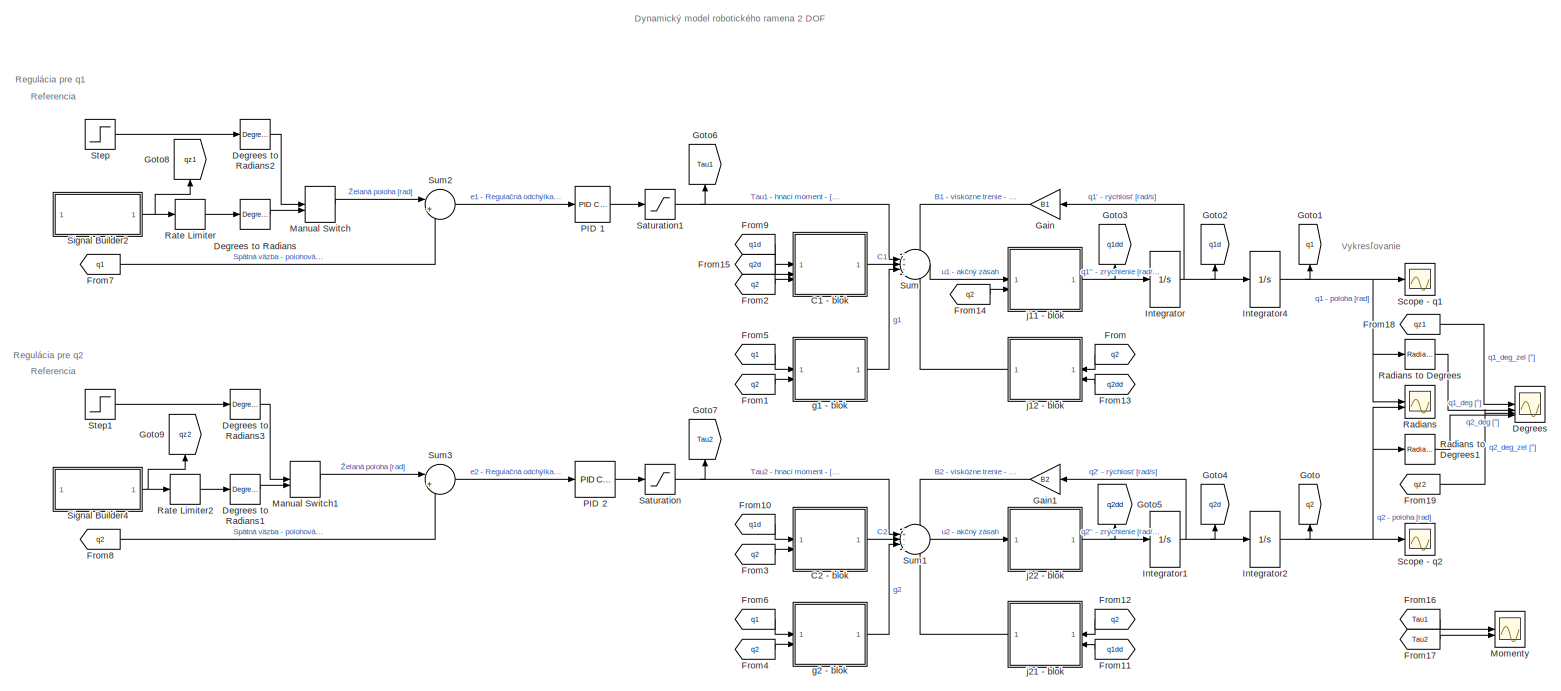
[diagram: root canvas - part 1/1, most of the canvas]
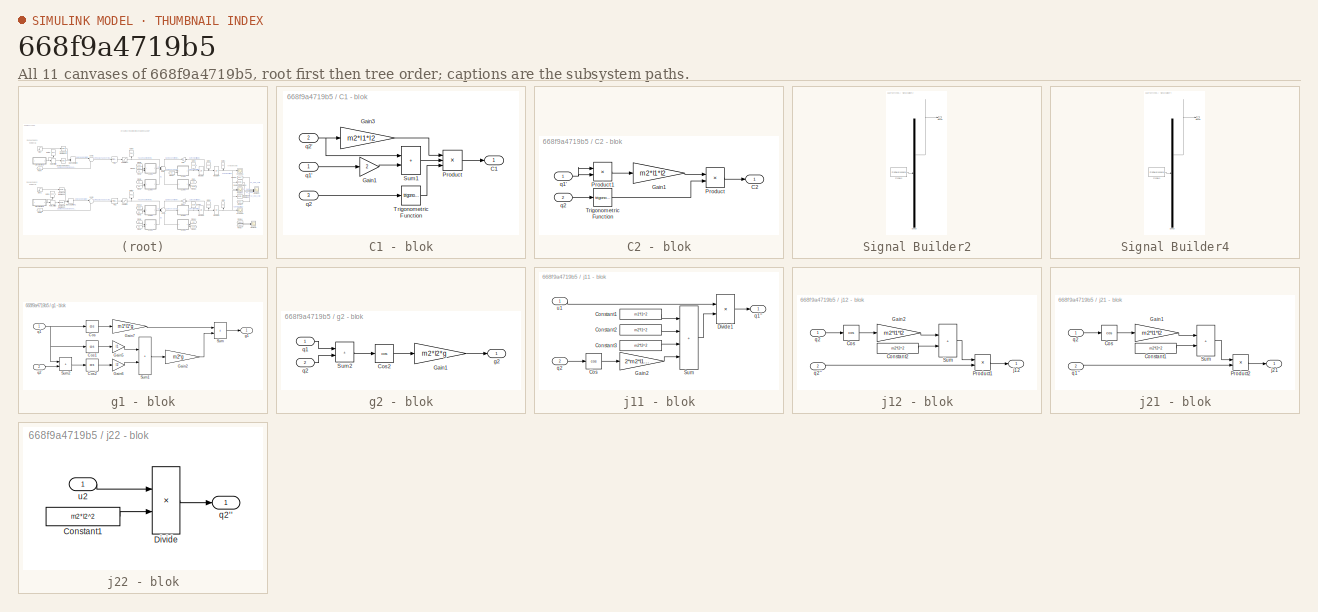
[diagram: thumbnail index - all 11 canvases of the model, root first then tree order]
MODEL slx_668f9a4719b5
KIND model
CONFIG AbsTol = auto
CONFIG EnableMultiTasking = off
CONFIG FixedStep = auto
CONFIG MaxStep = auto
CONFIG MinStep = auto
CONFIG RelTol = 1e-3
CONFIG SampleTimeConstraint = Unconstrained
CONFIG SolverName = VariableStepAuto
CONFIG StartTime = 0.0
CONFIG StopTime = 100
BLOCK [SubSystem] C1 - blok
BLOCK [Outport] C1 - blok/C1
BLOCK [Gain] C1 - blok/Gain1
  Gain = 2
BLOCK [Gain] C1 - blok/Gain3
  Gain = m2*l1*l2
BLOCK [Product] C1 - blok/Product
  Inputs = 3
BLOCK [Sum] C1 - blok/Sum1
  IconShape = rectangular
BLOCK [Trigonometry] C1 - blok/Trigonometric Function
BLOCK [Inport] C1 - blok/q1'
BLOCK [Inport] C1 - blok/q2
  Port = 3
BLOCK [Inport] C1 - blok/q2'
  Port = 2
BLOCK [SubSystem] C2 - blok
BLOCK [Outport] C2 - blok/C2
BLOCK [Gain] C2 - blok/Gain1
  Gain = m2*l1*l2
BLOCK [Product] C2 - blok/Product
BLOCK [Product] C2 - blok/Product1
BLOCK [Trigonometry] C2 - blok/Trigonometric Function
BLOCK [Inport] C2 - blok/q1'
BLOCK [Inport] C2 - blok/q2
  Port = 2
BLOCK [Scope] Degrees
  Floating = off
  NumInputPorts = 4
  ScopeSpecificationString = Simulink.scopes.TimeScopeBlockCfg('CurrentConfiguration', extmgr.ConfigurationSet(extmgr.Configuration('Core','General UI',true),extmgr.Configuration('Core','Source UI',true),extmgr.Configuration('Sources','WiredSimulink',true,'DataLoggingVariableName','OverenieModeluRegulacie','DataLogging',true,'DataLoggingSaveFormat','StructureWithTime'),extmgr.Configuration('Visuals','Time Domain',true,'Serial...<+1675ch>
BLOCK [Reference] Degrees to Radians  REF=simulink_extras/Transformations/Degrees to
Radians
  SourceBlock = simulink_extras/Transformations/Degrees to\nRadians
  SourceType = DegreesToRadians
BLOCK [Reference] Degrees to Radians1  REF=simulink_extras/Transformations/Degrees to
Radians
  SourceBlock = simulink_extras/Transformations/Degrees to\nRadians
  SourceType = DegreesToRadians
BLOCK [Reference] Degrees to Radians2  REF=simulink_extras/Transformations/Degrees to
Radians
  SourceBlock = simulink_extras/Transformations/Degrees to\nRadians
  SourceType = DegreesToRadians
BLOCK [Reference] Degrees to Radians3  REF=simulink_extras/Transformations/Degrees to
Radians
  SourceBlock = simulink_extras/Transformations/Degrees to\nRadians
  SourceType = DegreesToRadians
BLOCK [From] From
  GotoTag = q2
BLOCK [From] From1
  GotoTag = q2
BLOCK [From] From10
  GotoTag = q1d
BLOCK [From] From11
  GotoTag = q1dd
BLOCK [From] From12
  GotoTag = q2
BLOCK [From] From13
  GotoTag = q2dd
BLOCK [From] From14
  GotoTag = q2
BLOCK [From] From15
  GotoTag = q2d
BLOCK [From] From16
  GotoTag = Tau1
BLOCK [From] From17
  GotoTag = Tau2
BLOCK [From] From18
  GotoTag = qz1
BLOCK [From] From19
  GotoTag = qz2
BLOCK [From] From2
  GotoTag = q2
BLOCK [From] From3
  GotoTag = q2
BLOCK [From] From4
  GotoTag = q2
BLOCK [From] From5
  GotoTag = q1
BLOCK [From] From6
  GotoTag = q1
BLOCK [From] From7
  GotoTag = q1
BLOCK [From] From8
  GotoTag = q2
BLOCK [From] From9
  GotoTag = q1d
BLOCK [Gain] Gain
  Gain = B1
BLOCK [Gain] Gain1
  Gain = B2
BLOCK [Goto] Goto
  GotoTag = q2
  NameLocation = right
BLOCK [Goto] Goto1
  GotoTag = q1
  NameLocation = right
BLOCK [Goto] Goto2
  GotoTag = q1d
  NameLocation = right
BLOCK [Goto] Goto3
  GotoTag = q1dd
  NameLocation = right
BLOCK [Goto] Goto4
  GotoTag = q2d
  NameLocation = right
BLOCK [Goto] Goto5
  GotoTag = q2dd
  NameLocation = right
BLOCK [Goto] Goto6
  GotoTag = Tau1
  NameLocation = right
BLOCK [Goto] Goto7
  GotoTag = Tau2
  NameLocation = right
BLOCK [Goto] Goto8
  GotoTag = qz1
  NameLocation = right
BLOCK [Goto] Goto9
  GotoTag = qz2
  NameLocation = right
BLOCK [Integrator] Integrator
BLOCK [Integrator] Integrator1
BLOCK [Integrator] Integrator2
BLOCK [Integrator] Integrator4
BLOCK [ManualSwitch] Manual Switch
  CurrentSetting = 0
BLOCK [ManualSwitch] Manual Switch1
  CurrentSetting = 0
BLOCK [Scope] Momenty
  Floating = off
  NumInputPorts = 2
  ScopeSpecificationString = Simulink.scopes.TimeScopeBlockCfg('CurrentConfiguration', extmgr.ConfigurationSet(extmgr.Configuration('Core','General UI',true),extmgr.Configuration('Core','Source UI',true),extmgr.Configuration('Sources','WiredSimulink',true,'DataLoggingVariableName','momentyRiadenieBezobmedzenia','DataLogging',true,'DataLoggingSaveFormat','StructureWithTime'),extmgr.Configuration('Visuals','Time Domain',true,'S...<+1675ch>
BLOCK [Reference] PID 1  REF=slpidlib/PID Controller
  LibrarySourceBlock = simulink/Continuous/PID Controller
  SourceBlock = slpidlib/PID Controller
  SourceType = PID 1dof
BLOCK [Reference] PID 2  REF=slpidlib/PID Controller
  LibrarySourceBlock = simulink/Continuous/PID Controller
  SourceBlock = slpidlib/PID Controller
  SourceType = PID 1dof
BLOCK [Scope] Radians
  Floating = off
  NumInputPorts = 2
  ScopeSpecificationString = Simulink.scopes.TimeScopeBlockCfg('CurrentConfiguration', extmgr.ConfigurationSet(extmgr.Configuration('Core','General UI',true),extmgr.Configuration('Core','Source UI',true),extmgr.Configuration('Sources','WiredSimulink',true,'DataLoggingVariableName','ScopeData1'),extmgr.Configuration('Visuals','Time Domain',true,'SerializedDisplays',{struct('MinYLimReal','-3.36027','MaxYLimReal','1.08157','YLab...<+1394ch>
BLOCK [Reference] Radians to Degrees  REF=simulink_extras/Transformations/Radians
to Degrees
  SourceBlock = simulink_extras/Transformations/Radians\nto Degrees
  SourceType = RadiansToDegrees
BLOCK [Reference] Radians to Degrees1  REF=simulink_extras/Transformations/Radians
to Degrees
  SourceBlock = simulink_extras/Transformations/Radians\nto Degrees
  SourceType = RadiansToDegrees
BLOCK [RateLimiter] Rate Limiter
  FallingSlewLimit = -max_speedChange1
  RisingSlewLimit = max_speedChange1
BLOCK [RateLimiter] Rate Limiter2
  FallingSlewLimit = -max_speedChange2
  RisingSlewLimit = max_speedChange2
BLOCK [Saturate] Saturation
  LowerLimit = -max_tourque2
  UpperLimit = max_tourque2
BLOCK [Saturate] Saturation1
  LowerLimit = -max_tourque1
  UpperLimit = max_tourque1
BLOCK [Scope] Scope - q1
  Floating = off
  NumInputPorts = 1
  ScopeSpecificationString = Simulink.scopes.TimeScopeBlockCfg('CurrentConfiguration', extmgr.ConfigurationSet(extmgr.Configuration('Core','General UI',true),extmgr.Configuration('Core','Source UI',true),extmgr.Configuration('Sources','WiredSimulink',true),extmgr.Configuration('Visuals','Time Domain',true,'SerializedDisplays',{struct('MinYLimReal','-3.28059','MaxYLimReal','0.36451','YLabelReal','','MinYLimMag','0.00000','MaxY...<+1322ch>
BLOCK [Scope] Scope - q2
  Floating = off
  NumInputPorts = 1
  ScopeSpecificationString = Simulink.scopes.TimeScopeBlockCfg('CurrentConfiguration', extmgr.ConfigurationSet(extmgr.Configuration('Core','General UI',true),extmgr.Configuration('Core','Source UI',true),extmgr.Configuration('Sources','WiredSimulink',true,'DataLoggingVariableName','ScopeData1'),extmgr.Configuration('Visuals','Time Domain',true),extmgr.Configuration('Tools','Plot Navigation',true),extmgr.Configuration('Tools',...<+40ch>
BLOCK [SubSystem] Signal Builder2
  ClipboardFcn = sigbuilder_block('clipboard');
  CloseFcn = sigbuilder_block('close');
  ContinueFcn = sigbuilder_block('continue');
  CopyFcn = sigbuilder_block('copy');
  DeleteFcn = sigbuilder_block('delete');
  LoadFcn = sigbuilder_block('load');
  MaskHideContents = on
  ModelCloseFcn = sigbuilder_block('modelClose');
  NameChangeFcn = sigbuilder_block('namechange');
  OpenFcn = sigbuilder_block('open',[-1213.8 -85.8 1141.2 552.6 ]);
  PauseFcn = sigbuilder_block('pause');
  PreSaveFcn = sigbuilder_block('preSave');
  StartFcn = sigbuilder_block('start');
  StopFcn = sigbuilder_block('stop');
  Tag = STV Subsys
BLOCK [Demux] Signal Builder2/Demux
  DisplayOption = none
  Outputs = 1
  Tag = STV Demux
BLOCK [FromWorkspace] Signal Builder2/FromWs
  Tag = STV FromWs
  VariableName = tuvar
BLOCK [Outport] Signal Builder2/Signal 1
  Tag = STV Outport
BLOCK [SubSystem] Signal Builder4
  ClipboardFcn = sigbuilder_block('clipboard');
  CloseFcn = sigbuilder_block('close');
  ContinueFcn = sigbuilder_block('continue');
  CopyFcn = sigbuilder_block('copy');
  DeleteFcn = sigbuilder_block('delete');
  LoadFcn = sigbuilder_block('load');
  MaskHideContents = on
  ModelCloseFcn = sigbuilder_block('modelClose');
  NameChangeFcn = sigbuilder_block('namechange');
  OpenFcn = sigbuilder_block('open',[-1343.4 -48 1141.2 552.6 ]);
  PauseFcn = sigbuilder_block('pause');
  PreSaveFcn = sigbuilder_block('preSave');
  StartFcn = sigbuilder_block('start');
  StopFcn = sigbuilder_block('stop');
  Tag = STV Subsys
BLOCK [Demux] Signal Builder4/Demux
  DisplayOption = none
  Outputs = 1
  Tag = STV Demux
BLOCK [FromWorkspace] Signal Builder4/FromWs
  Tag = STV FromWs
  VariableName = tuvar
BLOCK [Outport] Signal Builder4/Signal 1
  Tag = STV Outport
BLOCK [Step] Step
  After = 0
  SampleTime = 0
  Time = 0
BLOCK [Step] Step1
  After = 0
  SampleTime = 0
  Time = 0
BLOCK [Sum] Sum
  Inputs = -++--
BLOCK [Sum] Sum1
  Inputs = -+---
BLOCK [Sum] Sum2
  Inputs = |+-
BLOCK [Sum] Sum3
  Inputs = |+-
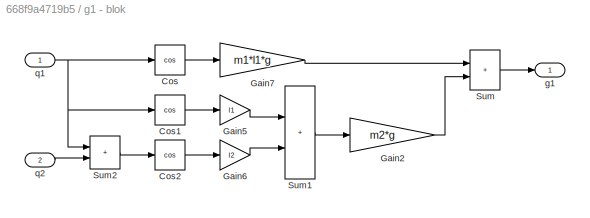
BLOCK [SubSystem] g1 - blok
BLOCK [Trigonometry] g1 - blok/Cos
  Operator = cos
BLOCK [Trigonometry] g1 - blok/Cos1
  Operator = cos
BLOCK [Trigonometry] g1 - blok/Cos2
  Operator = cos
BLOCK [Gain] g1 - blok/Gain2
  Gain = m2*g
BLOCK [Gain] g1 - blok/Gain5
  Gain = l1
BLOCK [Gain] g1 - blok/Gain6
  Gain = l2
BLOCK [Gain] g1 - blok/Gain7
  Gain = m1*l1*g
BLOCK [Sum] g1 - blok/Sum
  IconShape = rectangular
BLOCK [Sum] g1 - blok/Sum1
  IconShape = rectangular
BLOCK [Sum] g1 - blok/Sum2
  IconShape = rectangular
BLOCK [Outport] g1 - blok/g1
BLOCK [Inport] g1 - blok/q1
BLOCK [Inport] g1 - blok/q2
  Port = 2
BLOCK [SubSystem] g2 - blok
BLOCK [Trigonometry] g2 - blok/Cos2
  Operator = cos
BLOCK [Gain] g2 - blok/Gain1
  Gain = m2*l2*g
BLOCK [Sum] g2 - blok/Sum2
  IconShape = rectangular
BLOCK [Outport] g2 - blok/g2
BLOCK [Inport] g2 - blok/q1
BLOCK [Inport] g2 - blok/q2
  Port = 2
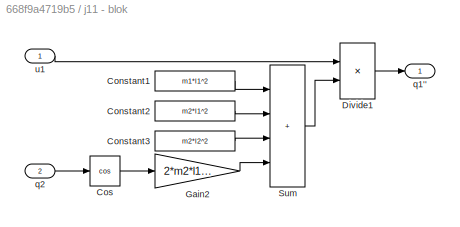
BLOCK [SubSystem] j11 - blok
BLOCK [Constant] j11 - blok/Constant1
  Value = m1*l1^2
BLOCK [Constant] j11 - blok/Constant2
  Value = m2*l1^2
BLOCK [Constant] j11 - blok/Constant3
  Value = m2*l2^2
BLOCK [Trigonometry] j11 - blok/Cos
  Operator = cos
BLOCK [Product] j11 - blok/Divide1
  Inputs = */
BLOCK [Gain] j11 - blok/Gain2
  Gain = 2*m2*l1*l2
BLOCK [Sum] j11 - blok/Sum
  IconShape = rectangular
  Inputs = ++++
BLOCK [Outport] j11 - blok/q1''
BLOCK [Inport] j11 - blok/q2
  Port = 2
BLOCK [Inport] j11 - blok/u1
BLOCK [SubSystem] j12 - blok
BLOCK [Constant] j12 - blok/Constant2
  Value = m2*l2^2
BLOCK [Trigonometry] j12 - blok/Cos
  Operator = cos
BLOCK [Gain] j12 - blok/Gain2
  Gain = m2*l1*l2
BLOCK [Product] j12 - blok/Product1
BLOCK [Sum] j12 - blok/Sum
  IconShape = rectangular
BLOCK [Outport] j12 - blok/j12
BLOCK [Inport] j12 - blok/q2
BLOCK [Inport] j12 - blok/q2''
  Port = 2
BLOCK [SubSystem] j21 - blok
BLOCK [Constant] j21 - blok/Constant1
  Value = m2*l2^2
BLOCK [Trigonometry] j21 - blok/Cos
  Operator = cos
BLOCK [Gain] j21 - blok/Gain1
  Gain = m2*l1*l2
BLOCK [Product] j21 - blok/Product2
BLOCK [Sum] j21 - blok/Sum
  IconShape = rectangular
BLOCK [Outport] j21 - blok/j21
BLOCK [Inport] j21 - blok/q1''
  Port = 2
BLOCK [Inport] j21 - blok/q2
BLOCK [SubSystem] j22 - blok
BLOCK [Constant] j22 - blok/Constant1
  Value = m2*l2^2
BLOCK [Product] j22 - blok/Divide
  Inputs = */
BLOCK [Outport] j22 - blok/q2''
BLOCK [Inport] j22 - blok/u2
ANNOTATION (root): Dynamický model robotického ramena 2 DOF
ANNOTATION (root): Referencia
ANNOTATION (root): Regulácia pre q1
ANNOTATION (root): Regulácia pre q2
ANNOTATION (root): Vykresľovanie
LINE C1 - blok/Gain1:1 -> C1 - blok/Sum1:2
LINE C1 - blok/Gain3:1 -> C1 - blok/Product:1
LINE C1 - blok/Product:1 -> C1 - blok/C1:1
LINE C1 - blok/Sum1:1 -> C1 - blok/Product:2
LINE C1 - blok/Trigonometric Function:1 -> C1 - blok/Product:3
LINE C1 - blok/q1':1 -> C1 - blok/Gain1:1
NET C1 - blok/q2':1 -> C1 - blok/Gain3:1, C1 - blok/Sum1:1
LINE C1 - blok/q2:1 -> C1 - blok/Trigonometric Function:1
LINE C1 - blok:1 -> Sum:3
LINE C2 - blok/Gain1:1 -> C2 - blok/Product:1
LINE C2 - blok/Product1:1 -> C2 - blok/Gain1:1
LINE C2 - blok/Product:1 -> C2 - blok/C2:1
LINE C2 - blok/Trigonometric Function:1 -> C2 - blok/Product:2
NET C2 - blok/q1':1 -> C2 - blok/Product1:1, C2 - blok/Product1:2
LINE C2 - blok/q2:1 -> C2 - blok/Trigonometric Function:1
LINE C2 - blok:1 -> Sum1:3
LINE Degrees to Radians1:1 -> Manual Switch1:2
LINE Degrees to Radians2:1 -> Manual Switch:1
LINE Degrees to Radians3:1 -> Manual Switch1:1
LINE Degrees to Radians:1 -> Manual Switch:2
LINE From10:1 -> C2 - blok:1
LINE From11:1 -> j21 - blok:2
LINE From12:1 -> j21 - blok:1
LINE From13:1 -> j12 - blok:2
LINE From14:1 -> j11 - blok:2
LINE From15:1 -> C1 - blok:2
LINE From16:1 -> Momenty:1
LINE From17:1 -> Momenty:2
LINE From18:1 -> Degrees:1
LINE From19:1 -> Degrees:3
LINE From1:1 -> g1 - blok:2
LINE From2:1 -> C1 - blok:3
LINE From3:1 -> C2 - blok:2
LINE From4:1 -> g2 - blok:2
LINE From5:1 -> g1 - blok:1
LINE From6:1 -> g2 - blok:1
LINE From7:1 -> Sum2:2
LINE From8:1 -> Sum3:2
LINE From9:1 -> C1 - blok:1
LINE From:1 -> j12 - blok:1
LINE Gain1:1 -> Sum1:1
LINE Gain:1 -> Sum:1
NET Integrator1:1 -> Gain1:1, Goto4:1, Integrator2:1
NET Integrator2:1 -> Goto:1, Radians to Degrees1:1, Radians:2, Scope - q2:1
NET Integrator4:1 -> Goto1:1, Radians to Degrees:1, Radians:1, Scope - q1:1
NET Integrator:1 -> Gain:1, Goto2:1, Integrator4:1
LINE Manual Switch1:1 -> Sum3:1
LINE Manual Switch:1 -> Sum2:1
LINE PID 1:1 -> Saturation1:1
LINE PID 2:1 -> Saturation:1
LINE Radians to Degrees1:1 -> Degrees:4
LINE Radians to Degrees:1 -> Degrees:2
LINE Rate Limiter2:1 -> Degrees to Radians1:1
LINE Rate Limiter:1 -> Degrees to Radians:1
NET Saturation1:1 -> Goto6:1, Sum:2
NET Saturation:1 -> Goto7:1, Sum1:2
NET Signal Builder2:1 -> Goto8:1, Rate Limiter:1
NET Signal Builder4:1 -> Goto9:1, Rate Limiter2:1
LINE Step1:1 -> Degrees to Radians3:1
LINE Step:1 -> Degrees to Radians2:1
LINE Sum1:1 -> j22 - blok:1
LINE Sum2:1 -> PID 1:1
LINE Sum3:1 -> PID 2:1
LINE Sum:1 -> j11 - blok:1
LINE g1 - blok/Cos1:1 -> g1 - blok/Gain5:1
LINE g1 - blok/Cos2:1 -> g1 - blok/Gain6:1
LINE g1 - blok/Cos:1 -> g1 - blok/Gain7:1
LINE g1 - blok/Gain2:1 -> g1 - blok/Sum:2
LINE g1 - blok/Gain5:1 -> g1 - blok/Sum1:1
LINE g1 - blok/Gain6:1 -> g1 - blok/Sum1:2
LINE g1 - blok/Gain7:1 -> g1 - blok/Sum:1
LINE g1 - blok/Sum1:1 -> g1 - blok/Gain2:1
LINE g1 - blok/Sum2:1 -> g1 - blok/Cos2:1
LINE g1 - blok/Sum:1 -> g1 - blok/g1:1
NET g1 - blok/q1:1 -> g1 - blok/Cos1:1, g1 - blok/Cos:1, g1 - blok/Sum2:1
LINE g1 - blok/q2:1 -> g1 - blok/Sum2:2
LINE g1 - blok:1 -> Sum:4
LINE g2 - blok/Cos2:1 -> g2 - blok/Gain1:1
LINE g2 - blok/Gain1:1 -> g2 - blok/g2:1
LINE g2 - blok/Sum2:1 -> g2 - blok/Cos2:1
LINE g2 - blok/q1:1 -> g2 - blok/Sum2:1
LINE g2 - blok/q2:1 -> g2 - blok/Sum2:2
LINE g2 - blok:1 -> Sum1:4
LINE j11 - blok/Constant1:1 -> j11 - blok/Sum:1
LINE j11 - blok/Constant2:1 -> j11 - blok/Sum:2
LINE j11 - blok/Constant3:1 -> j11 - blok/Sum:3
LINE j11 - blok/Cos:1 -> j11 - blok/Gain2:1
LINE j11 - blok/Divide1:1 -> j11 - blok/q1'':1
LINE j11 - blok/Gain2:1 -> j11 - blok/Sum:4
LINE j11 - blok/Sum:1 -> j11 - blok/Divide1:2
LINE j11 - blok/q2:1 -> j11 - blok/Cos:1
LINE j11 - blok/u1:1 -> j11 - blok/Divide1:1
NET j11 - blok:1 -> Goto3:1, Integrator:1
LINE j12 - blok/Constant2:1 -> j12 - blok/Sum:2
LINE j12 - blok/Cos:1 -> j12 - blok/Gain2:1
LINE j12 - blok/Gain2:1 -> j12 - blok/Sum:1
LINE j12 - blok/Product1:1 -> j12 - blok/j12:1
LINE j12 - blok/Sum:1 -> j12 - blok/Product1:1
LINE j12 - blok/q2'':1 -> j12 - blok/Product1:2
LINE j12 - blok/q2:1 -> j12 - blok/Cos:1
LINE j12 - blok:1 -> Sum:5
LINE j21 - blok/Constant1:1 -> j21 - blok/Sum:2
LINE j21 - blok/Cos:1 -> j21 - blok/Gain1:1
LINE j21 - blok/Gain1:1 -> j21 - blok/Sum:1
LINE j21 - blok/Product2:1 -> j21 - blok/j21:1
LINE j21 - blok/Sum:1 -> j21 - blok/Product2:1
LINE j21 - blok/q1'':1 -> j21 - blok/Product2:2
LINE j21 - blok/q2:1 -> j21 - blok/Cos:1
LINE j21 - blok:1 -> Sum1:5
LINE j22 - blok/Constant1:1 -> j22 - blok/Divide:2
LINE j22 - blok/Divide:1 -> j22 - blok/q2'':1
LINE j22 - blok/u2:1 -> j22 - blok/Divide:1
NET j22 - blok:1 -> Goto5:1, Integrator1:1
note: NET lines group one-source signal fan-out (src -> all destinations, sorted); 1:1 wires keep LINE
